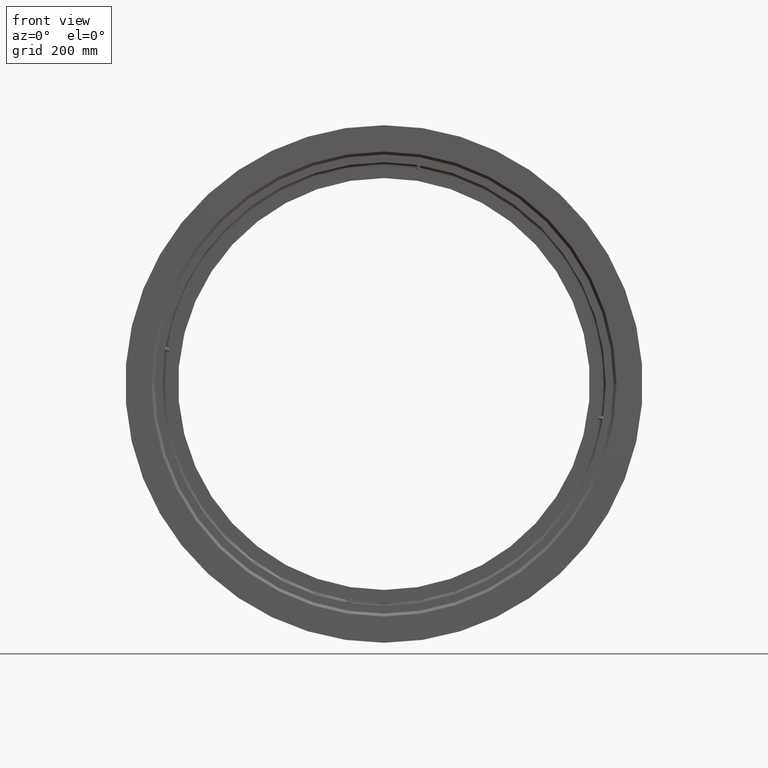
[diagram: clean part render]
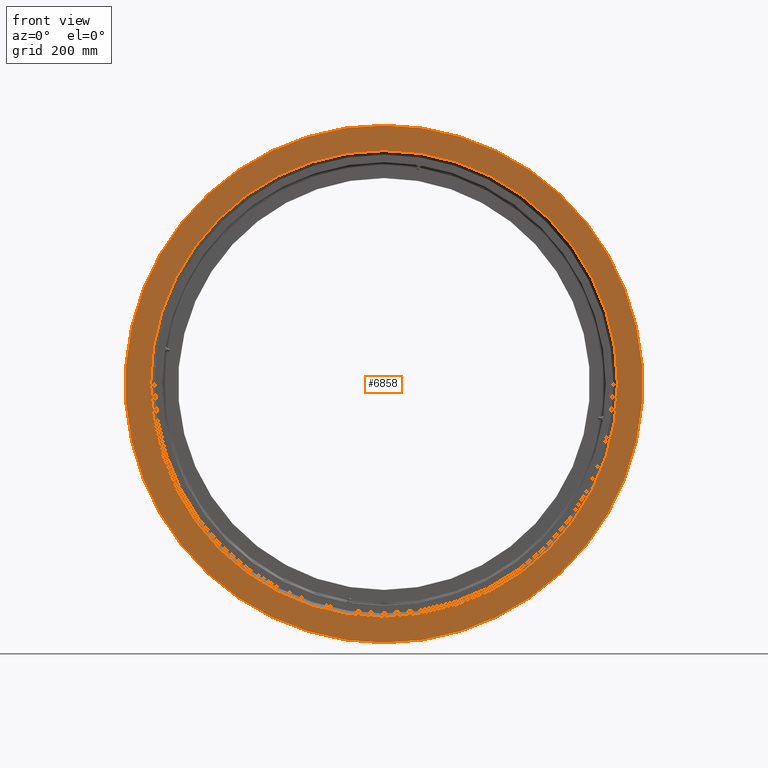
[diagram: same view with one face highlighted and labeled with its STEP entity id]
A machine part, front view. The second image highlights one B-rep face of the part: STEP entity #6858.
In plain terms, the highlighted planar face has unit normal (-0, 1, 0).
Its self-contained STEP definition (entity closure, byte-faithful):
#26 = ORIENTED_EDGE ( 'NONE', *, *, #4472, .F. ) ;
#89 = CARTESIAN_POINT ( 'NONE',  ( 0.0000000000000000000, -28.00000000000002500, 0.0000000000000000000 ) ) ;
#191 = CARTESIAN_POINT ( 'NONE',  ( 0.0000000000000000000, -28.00000000000003200, 0.0000000000000000000 ) ) ;
#285 = CARTESIAN_POINT ( 'NONE',  ( 0.0000000000000000000, -28.00000000000002500, 0.0000000000000000000 ) ) ;
#438 = EDGE_CURVE ( 'NONE', #2510, #3728, #2486, .T. ) ;
#541 = FACE_BOUND ( 'NONE', #8021, .T. ) ;
#717 = DIRECTION ( 'NONE',  ( 0.0000000000000000000, 0.0000000000000000000, 1.000000000000000000 ) ) ;
#817 = DIRECTION ( 'NONE',  ( 0.0000000000000000000, 0.0000000000000000000, 1.000000000000000000 ) ) ;
#1236 = DIRECTION ( 'NONE',  ( -0.0000000000000000000, 1.000000000000000000, -0.0000000000000000000 ) ) ;
#1395 = CIRCLE ( 'NONE', #7220, 524.0000000000000000 ) ;
#1623 = CIRCLE ( 'NONE', #2434, 524.0000000000000000 ) ;
#1843 = PLANE ( 'NONE',  #3234 ) ;
#2172 = CARTESIAN_POINT ( 'NONE',  ( 5.789517742969113600E-014, -28.00000000000002500, -472.7500000000001100 ) ) ;
#2434 = AXIS2_PLACEMENT_3D ( 'NONE', #191, #4526, #817 ) ;
#2486 = CIRCLE ( 'NONE', #3740, 472.7500000000000600 ) ;
#2510 = VERTEX_POINT ( 'NONE', #2172 ) ;
#3113 = AXIS2_PLACEMENT_3D ( 'NONE', #89, #4427, #717 ) ;
#3234 = AXIS2_PLACEMENT_3D ( 'NONE', #6147, #7417, #3708 ) ;
#3368 = EDGE_CURVE ( 'NONE', #4960, #6785, #1623, .T. ) ;
#3370 = CIRCLE ( 'NONE', #3113, 472.7500000000000600 ) ;
#3394 = ORIENTED_EDGE ( 'NONE', *, *, #3368, .F. ) ;
#3665 = EDGE_CURVE ( 'NONE', #3728, #2510, #3370, .T. ) ;
#3708 = DIRECTION ( 'NONE',  ( 0.0000000000000000000, 0.0000000000000000000, 1.000000000000000000 ) ) ;
#3728 = VERTEX_POINT ( 'NONE', #5118 ) ;
#3740 = AXIS2_PLACEMENT_3D ( 'NONE', #285, #4029, #6447 ) ;
#4029 = DIRECTION ( 'NONE',  ( -0.0000000000000000000, 1.000000000000000000, -0.0000000000000000000 ) ) ;
#4427 = DIRECTION ( 'NONE',  ( -0.0000000000000000000, 1.000000000000000000, -0.0000000000000000000 ) ) ;
#4472 = EDGE_CURVE ( 'NONE', #6785, #4960, #1395, .T. ) ;
#4526 = DIRECTION ( 'NONE',  ( -0.0000000000000000000, 1.000000000000000000, -0.0000000000000000000 ) ) ;
#4960 = VERTEX_POINT ( 'NONE', #5339 ) ;
#4974 = CARTESIAN_POINT ( 'NONE',  ( 0.0000000000000000000, -28.00000000000003200, 0.0000000000000000000 ) ) ;
#5118 = CARTESIAN_POINT ( 'NONE',  ( 0.0000000000000000000, -28.00000000000002500, 472.7500000000000600 ) ) ;
#5177 = ORIENTED_EDGE ( 'NONE', *, *, #438, .T. ) ;
#5339 = CARTESIAN_POINT ( 'NONE',  ( 6.417149227532131900E-014, -28.00000000000003200, -524.0000000000000000 ) ) ;
#5584 = DIRECTION ( 'NONE',  ( 0.0000000000000000000, 0.0000000000000000000, 1.000000000000000000 ) ) ;
#6147 = CARTESIAN_POINT ( 'NONE',  ( 0.0000000000000000000, -28.00000000000003200, 472.7500000000000600 ) ) ;
#6447 = DIRECTION ( 'NONE',  ( 0.0000000000000000000, 0.0000000000000000000, 1.000000000000000000 ) ) ;
#6785 = VERTEX_POINT ( 'NONE', #7449 ) ;
#6858 = ADVANCED_FACE ( 'NONE', ( #7335, #541 ), #1843, .F. ) ;
#7024 = ORIENTED_EDGE ( 'NONE', *, *, #3665, .T. ) ;
#7190 = EDGE_LOOP ( 'NONE', ( #26, #3394 ) ) ;
#7220 = AXIS2_PLACEMENT_3D ( 'NONE', #4974, #1236, #5584 ) ;
#7335 = FACE_OUTER_BOUND ( 'NONE', #7190, .T. ) ;
#7417 = DIRECTION ( 'NONE',  ( -0.0000000000000000000, 1.000000000000000000, 0.0000000000000000000 ) ) ;
#7449 = CARTESIAN_POINT ( 'NONE',  ( 0.0000000000000000000, -28.00000000000003200, 524.0000000000000000 ) ) ;
#8021 = EDGE_LOOP ( 'NONE', ( #7024, #5177 ) ) ;